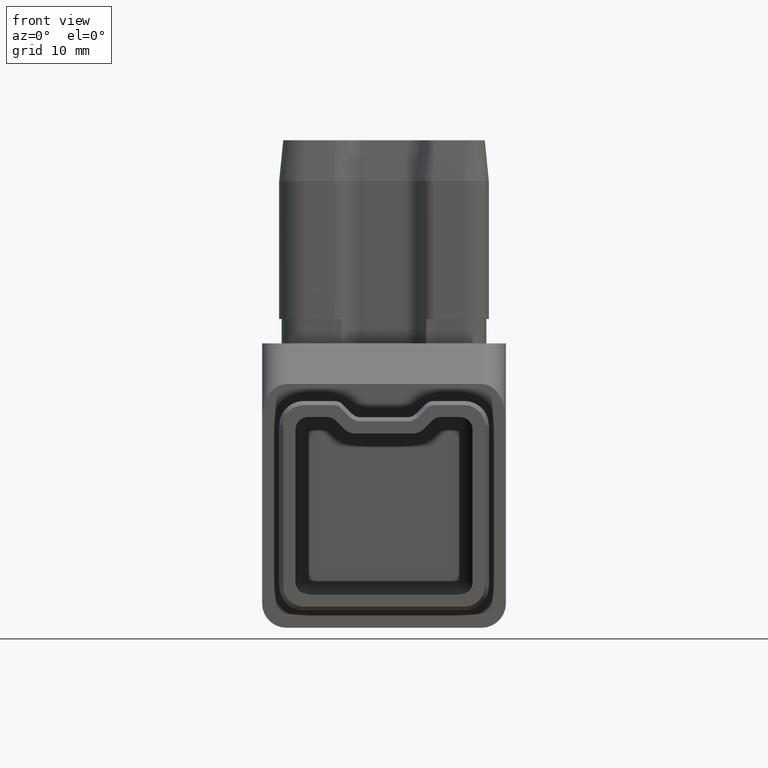
[diagram: clean part render]
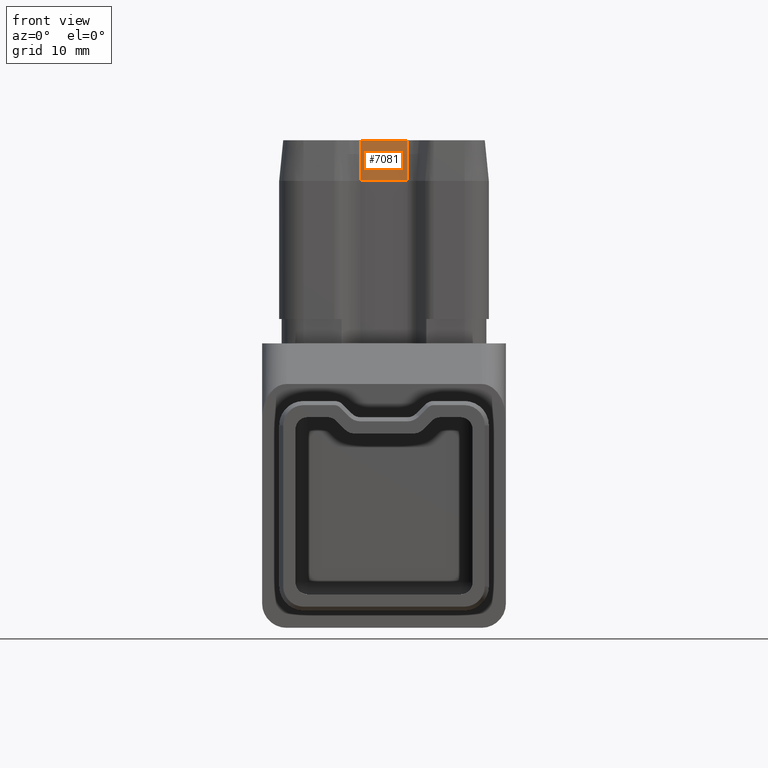
[diagram: same view with one face highlighted and labeled with its STEP entity id]
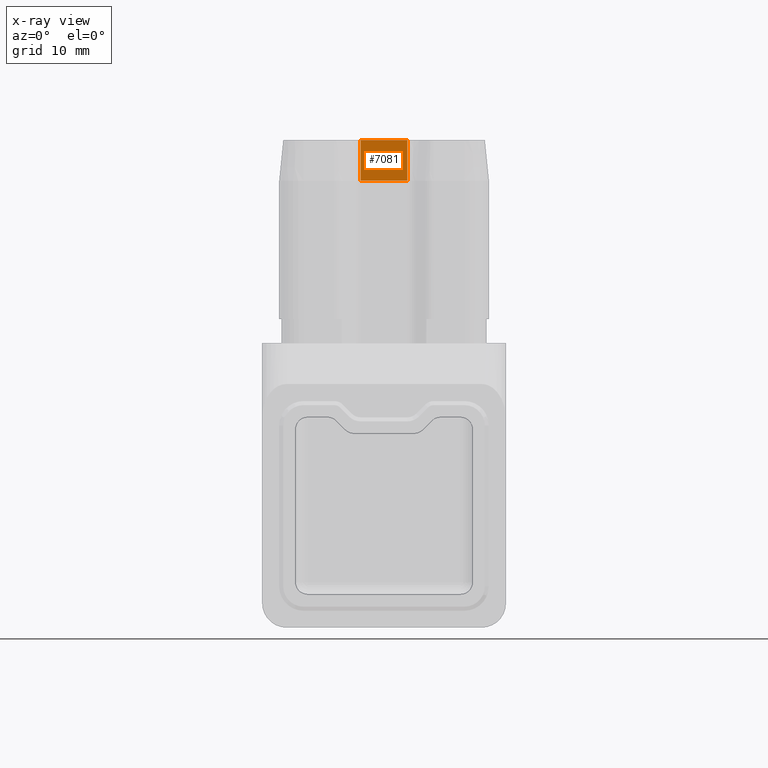
[diagram: x-ray of the same camera — body ghosted, the highlighted face saturated]
A machine part, front view. The second image highlights one B-rep face of the part: STEP entity #7081.
The next image is the same camera in x-ray: the body ghosted, the highlighted face saturated — about 0% of this face is hidden behind the body in this view.
In plain terms, the highlighted planar face has unit normal (0, 0.995, -0.0995).
Its self-contained STEP definition (entity closure, byte-faithful):
#220 = EDGE_CURVE ( 'NONE', #14646, #24716, #9727, .T. ) ;
#2487 = CARTESIAN_POINT ( 'NONE',  ( -2.878679656440363400, -7.899999999999997700, 42.50000000000000000 ) ) ;
#2717 = CARTESIAN_POINT ( 'NONE',  ( 2.878679656440357200, -8.399999999999995000, 37.50000000000000700 ) ) ;
#2750 = FACE_OUTER_BOUND ( 'NONE', #12917, .T. ) ;
#3124 = LINE ( 'NONE', #24078, #9503 ) ;
#6050 = EDGE_CURVE ( 'NONE', #24716, #18936, #23166, .T. ) ;
#6597 = VERTEX_POINT ( 'NONE', #2717 ) ;
#6980 = CARTESIAN_POINT ( 'NONE',  ( -2.878679656440363400, -7.899999999999997700, 42.50000000000000000 ) ) ;
#7081 = ADVANCED_FACE ( 'NONE', ( #2750 ), #9835, .F. ) ;
#7837 = AXIS2_PLACEMENT_3D ( 'NONE', #7857, #16279, #24886 ) ;
#7857 = CARTESIAN_POINT ( 'NONE',  ( 2.878679656440357200, -7.899999999999997700, 42.50000000000000000 ) ) ;
#9503 = VECTOR ( 'NONE', #17795, 1000.000000000000000 ) ;
#9727 = LINE ( 'NONE', #11920, #14758 ) ;
#9730 = CARTESIAN_POINT ( 'NONE',  ( -2.878679656440363400, -8.399999999999995000, 37.50000000000000700 ) ) ;
#9835 = PLANE ( 'NONE',  #7837 ) ;
#9878 = ORIENTED_EDGE ( 'NONE', *, *, #6050, .T. ) ;
#11117 = DIRECTION ( 'NONE',  ( -6.938893903907227100E-017, -0.09950371902099836000, -0.9950371902099891500 ) ) ;
#11920 = CARTESIAN_POINT ( 'NONE',  ( 2.878679656440357200, -7.899999999999997700, 42.50000000000000000 ) ) ;
#12917 = EDGE_LOOP ( 'NONE', ( #26610, #23734, #9878, #16814 ) ) ;
#13336 = CARTESIAN_POINT ( 'NONE',  ( 2.878679656440357200, -7.899999999999997700, 42.50000000000000000 ) ) ;
#14646 = VERTEX_POINT ( 'NONE', #24982 ) ;
#14758 = VECTOR ( 'NONE', #19828, 1000.000000000000000 ) ;
#15197 = VECTOR ( 'NONE', #11117, 1000.000000000000200 ) ;
#15287 = EDGE_CURVE ( 'NONE', #6597, #18936, #3124, .T. ) ;
#16279 = DIRECTION ( 'NONE',  ( 0.0000000000000000000, 0.9950371902099892600, -0.09950371902099837400 ) ) ;
#16814 = ORIENTED_EDGE ( 'NONE', *, *, #15287, .F. ) ;
#16867 = LINE ( 'NONE', #13336, #19539 ) ;
#16901 = EDGE_CURVE ( 'NONE', #14646, #6597, #16867, .T. ) ;
#17795 = DIRECTION ( 'NONE',  ( -1.000000000000000000, 0.0000000000000000000, 0.0000000000000000000 ) ) ;
#18936 = VERTEX_POINT ( 'NONE', #9730 ) ;
#19539 = VECTOR ( 'NONE', #19667, 1000.000000000000200 ) ;
#19667 = DIRECTION ( 'NONE',  ( -6.938893903907227100E-017, -0.09950371902099836000, -0.9950371902099891500 ) ) ;
#19828 = DIRECTION ( 'NONE',  ( -1.000000000000000000, 0.0000000000000000000, 0.0000000000000000000 ) ) ;
#23166 = LINE ( 'NONE', #6980, #15197 ) ;
#23734 = ORIENTED_EDGE ( 'NONE', *, *, #220, .T. ) ;
#24078 = CARTESIAN_POINT ( 'NONE',  ( 2.878679656440357200, -8.399999999999995000, 37.50000000000000700 ) ) ;
#24716 = VERTEX_POINT ( 'NONE', #2487 ) ;
#24886 = DIRECTION ( 'NONE',  ( 0.0000000000000000000, 0.09950371902099836000, 0.9950371902099891500 ) ) ;
#24982 = CARTESIAN_POINT ( 'NONE',  ( 2.878679656440357200, -7.899999999999997700, 42.50000000000000000 ) ) ;
#26610 = ORIENTED_EDGE ( 'NONE', *, *, #16901, .F. ) ;